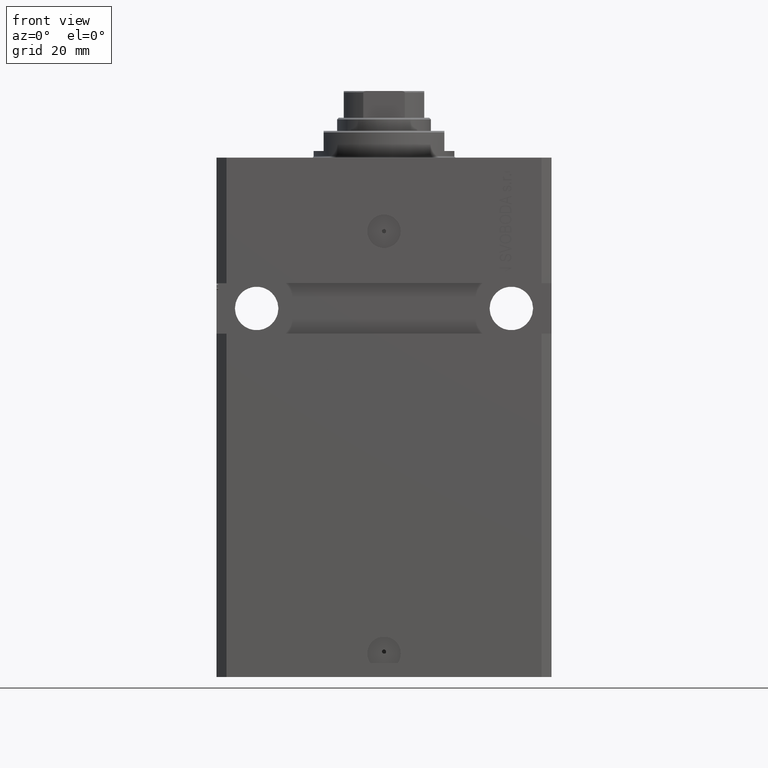
[diagram: clean part render]
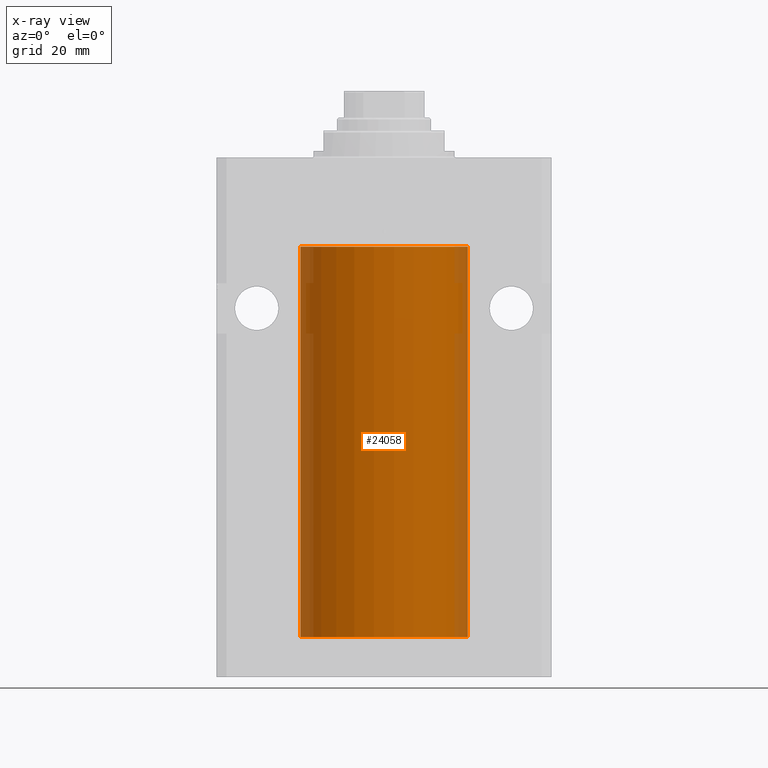
[diagram: x-ray — body ghosted, one internal face saturated and labeled with its STEP entity id]
A machine part, front view, then the same camera in x-ray: the body is ghosted and one INTERNAL B-rep face — a face not visible from any outside direction — is saturated and labeled: STEP entity #24058.
In plain terms, the highlighted cylindrical surface (partial cylindrical patch) has radius 25 mm, axis along (0, 0, 1).
Its self-contained STEP definition (entity closure, byte-faithful):
#1090 = CARTESIAN_POINT ( 'NONE',  ( 0.000000000000000000, 0.000000000000000000, -26.60000000000000142 ) ) ;
#2147 = CARTESIAN_POINT ( 'NONE',  ( 24.99405221541606892, -0.5573590499560034939, -140.8264563884999347 ) ) ;
#2243 = ORIENTED_EDGE ( 'NONE', *, *, #16181, .T. ) ;
#2378 = CARTESIAN_POINT ( 'NONE',  ( -24.99813644420121506, -0.3263088753891940641, -141.0574119792819374 ) ) ;
#2499 = ORIENTED_EDGE ( 'NONE', *, *, #21433, .T. ) ;
#2803 = CARTESIAN_POINT ( 'NONE',  ( -25.00000000000000000, 3.061616997868383043E-15, -143.0999999999999943 ) ) ;
#3096 = CARTESIAN_POINT ( 'NONE',  ( -25.00000000000008171, 3.517566533863564531E-13, -141.1250000000032685 ) ) ;
#3590 = EDGE_CURVE ( 'NONE', #18065, #9797, #22498, .T. ) ;
#3774 = CARTESIAN_POINT ( 'NONE',  ( 24.99218627891525912, -0.6250000000000449640, -140.4999999999999716 ) ) ;
#4320 = VERTEX_POINT ( 'NONE', #16765 ) ;
#5155 = VERTEX_POINT ( 'NONE', #9825 ) ;
#5728 = DIRECTION ( 'NONE',  ( 0.000000000000000000, 0.000000000000000000, 1.000000000000000000 ) ) ;
#6041 = CARTESIAN_POINT ( 'NONE',  ( 25.00000000000000000, -0.1650629246255861937, -141.1249999999999716 ) ) ;
#8714 = CARTESIAN_POINT ( 'NONE',  ( 24.99218627891525912, -0.6250000000000449640, -140.4999999999999716 ) ) ;
#8967 = VECTOR ( 'NONE', #13938, 1000.000000000000000 ) ;
#9797 = VERTEX_POINT ( 'NONE', #23035 ) ;
#9825 = CARTESIAN_POINT ( 'NONE',  ( -25.00000000000000000, 3.061616997868383043E-15, -26.60000000000000142 ) ) ;
#10835 = DIRECTION ( 'NONE',  ( -0.000000000000000000, -0.000000000000000000, 1.000000000000000000 ) ) ;
#11603 = EDGE_CURVE ( 'NONE', #15864, #9797, #22957, .T. ) ;
#12080 = DIRECTION ( 'NONE',  ( -0.000000000000000000, -0.000000000000000000, 1.000000000000000000 ) ) ;
#12880 = CARTESIAN_POINT ( 'NONE',  ( 24.99218627891526268, -0.6250000000000450751, -140.6647828774370623 ) ) ;
#13158 = CARTESIAN_POINT ( 'NONE',  ( -25.00000000000000000, -2.240465332326360227E-14, -139.8749999999999716 ) ) ;
#13228 = EDGE_CURVE ( 'NONE', #5155, #46076, #14794, .T. ) ;
#13295 = EDGE_CURVE ( 'NONE', #25918, #15864, #38964, .T. ) ;
#13351 = CARTESIAN_POINT ( 'NONE',  ( -25.00000000000000711, -0.1651503688830903982, -139.8750000000000284 ) ) ;
#13381 = B_SPLINE_CURVE_WITH_KNOTS ( 'NONE', 3,
 ( #45789, #30423, #27760, #27273, #35064, #38976 ),
 .UNSPECIFIED., .F., .F.,
 ( 4, 2, 4 ),
 ( 0.001954111766881311187, 0.002442787801636890632, 0.002931463836392470077 ),
 .UNSPECIFIED. ) ;
#13827 = CARTESIAN_POINT ( 'NONE',  ( -24.99406145684571356, -0.5569515746259056099, -140.8270940848234432 ) ) ;
#13938 = DIRECTION ( 'NONE',  ( -0.000000000000000000, -0.000000000000000000, 1.000000000000000000 ) ) ;
#14794 = CIRCLE ( 'NONE', #30368, 25.00000000000000000 ) ;
#15864 = VERTEX_POINT ( 'NONE', #21888 ) ;
#16181 = EDGE_CURVE ( 'NONE', #25918, #4320, #21829, .T. ) ;
#16451 = DIRECTION ( 'NONE',  ( 1.000000000000000000, 0.000000000000000000, 0.000000000000000000 ) ) ;
#16765 = CARTESIAN_POINT ( 'NONE',  ( -25.00000000000008171, 3.517566533863564531E-13, -141.1250000000032685 ) ) ;
#17100 = CARTESIAN_POINT ( 'NONE',  ( 25.00000000000000000, 0.000000000000000000, -143.0999999999999943 ) ) ;
#17265 = AXIS2_PLACEMENT_3D ( 'NONE', #20114, #12080, #16451 ) ;
#18065 = VERTEX_POINT ( 'NONE', #3774 ) ;
#18677 = VERTEX_POINT ( 'NONE', #24629 ) ;
#19859 = DIRECTION ( 'NONE',  ( 0.000000000000000000, 0.000000000000000000, 1.000000000000000000 ) ) ;
#20114 = CARTESIAN_POINT ( 'NONE',  ( 0.000000000000000000, 0.000000000000000000, -143.0999999999999943 ) ) ;
#20661 = CARTESIAN_POINT ( 'NONE',  ( -24.99218282981962957, -0.6251379207535932014, -140.3356756471091558 ) ) ;
#21247 = ORIENTED_EDGE ( 'NONE', *, *, #36749, .T. ) ;
#21433 = EDGE_CURVE ( 'NONE', #18677, #18065, #13381, .T. ) ;
#21632 = CARTESIAN_POINT ( 'NONE',  ( -25.00000000000000355, -0.1631302912503588276, -141.1250000000002274 ) ) ;
#21829 = LINE ( 'NONE', #36677, #26349 ) ;
#21888 = CARTESIAN_POINT ( 'NONE',  ( 25.00000000000000000, 0.000000000000000000, -143.0999999999999943 ) ) ;
#22498 = B_SPLINE_CURVE_WITH_KNOTS ( 'NONE', 3,
 ( #8714, #12880, #2147, #31120, #6041, #45992 ),
 .UNSPECIFIED., .F., .F.,
 ( 4, 2, 4 ),
 ( 0.002931463836392470077, 0.003419622654026911821, 0.003907781471661353132 ),
 .UNSPECIFIED. ) ;
#22707 = DIRECTION ( 'NONE',  ( -0.000000000000000000, -0.000000000000000000, 1.000000000000000000 ) ) ;
#22957 = LINE ( 'NONE', #38057, #38892 ) ;
#23035 = CARTESIAN_POINT ( 'NONE',  ( 25.00000000000000000, 2.614778811499482268E-15, -141.1249999999999716 ) ) ;
#23741 = EDGE_CURVE ( 'NONE', #4320, #34115, #42403, .T. ) ;
#24058 = ADVANCED_FACE ( 'NONE', ( #34709 ), #38624, .F. ) ;
#24629 = CARTESIAN_POINT ( 'NONE',  ( 25.00000000000008171, 3.486950366684838397E-13, -139.8749999999966747 ) ) ;
#25741 = ORIENTED_EDGE ( 'NONE', *, *, #13295, .F. ) ;
#25918 = VERTEX_POINT ( 'NONE', #42489 ) ;
#26133 = VECTOR ( 'NONE', #10835, 1000.000000000000000 ) ;
#26349 = VECTOR ( 'NONE', #33238, 1000.000000000000000 ) ;
#27273 = CARTESIAN_POINT ( 'NONE',  ( 24.99405709967502887, -0.5571503051635620096, -140.1731998930931695 ) ) ;
#27760 = CARTESIAN_POINT ( 'NONE',  ( 24.99813432839964733, -0.3264764365875501562, -139.9426599702414933 ) ) ;
#29154 = CARTESIAN_POINT ( 'NONE',  ( -24.99404783808661534, -0.5575587241817613338, -140.1738392125429868 ) ) ;
#30368 = AXIS2_PLACEMENT_3D ( 'NONE', #1090, #19859, #45924 ) ;
#30423 = CARTESIAN_POINT ( 'NONE',  ( 25.00000000000000000, -0.1632166659117592067, -139.8749999999998010 ) ) ;
#31120 = CARTESIAN_POINT ( 'NONE',  ( 24.99813006673835503, -0.3267849812101316642, -141.0571664564703553 ) ) ;
#32651 = ORIENTED_EDGE ( 'NONE', *, *, #34828, .F. ) ;
#33238 = DIRECTION ( 'NONE',  ( -0.000000000000000000, -0.000000000000000000, 1.000000000000000000 ) ) ;
#33861 = LINE ( 'NONE', #2803, #26133 ) ;
#34115 = VERTEX_POINT ( 'NONE', #13158 ) ;
#34648 = ORIENTED_EDGE ( 'NONE', *, *, #11603, .F. ) ;
#34709 = FACE_OUTER_BOUND ( 'NONE', #35174, .T. ) ;
#34828 = EDGE_CURVE ( 'NONE', #18677, #46076, #42927, .T. ) ;
#35064 = CARTESIAN_POINT ( 'NONE',  ( 24.99218627891525912, -0.6250000000000449640, -140.3350425307653211 ) ) ;
#35174 = EDGE_LOOP ( 'NONE', ( #25741, #2243, #36778, #21247, #42245, #32651, #2499, #45097, #34648 ) ) ;
#36170 = CARTESIAN_POINT ( 'NONE',  ( 0.000000000000000000, 0.000000000000000000, -143.0999999999999943 ) ) ;
#36677 = CARTESIAN_POINT ( 'NONE',  ( -25.00000000000000000, 3.061616997868383043E-15, -143.0999999999999943 ) ) ;
#36749 = EDGE_CURVE ( 'NONE', #34115, #5155, #33861, .T. ) ;
#36778 = ORIENTED_EDGE ( 'NONE', *, *, #23741, .T. ) ;
#38057 = CARTESIAN_POINT ( 'NONE',  ( 25.00000000000000000, 0.000000000000000000, -143.0999999999999943 ) ) ;
#38175 = AXIS2_PLACEMENT_3D ( 'NONE', #36170, #5728, #39588 ) ;
#38624 = CYLINDRICAL_SURFACE ( 'NONE', #17265, 25.00000000000000000 ) ;
#38892 = VECTOR ( 'NONE', #22707, 1000.000000000000000 ) ;
#38964 = CIRCLE ( 'NONE', #38175, 25.00000000000000000 ) ;
#38976 = CARTESIAN_POINT ( 'NONE',  ( 24.99218627891525912, -0.6250000000000449640, -140.4999999999999716 ) ) ;
#39588 = DIRECTION ( 'NONE',  ( 1.000000000000000000, 0.000000000000000000, 0.000000000000000000 ) ) ;
#40015 = CARTESIAN_POINT ( 'NONE',  ( 25.00000000000000000, 0.000000000000000000, -26.60000000000000142 ) ) ;
#42245 = ORIENTED_EDGE ( 'NONE', *, *, #13228, .T. ) ;
#42403 = B_SPLINE_CURVE_WITH_KNOTS ( 'NONE', 3,
 ( #3096, #21632, #2378, #13827, #44019, #20661, #29154, #46715, #13351, #43061 ),
 .UNSPECIFIED., .F., .F.,
 ( 4, 2, 2, 2, 4 ),
 ( 0.001954111766881379275, 0.002442529193076384015, 0.002930946619271388755, 0.003419364045466393495, 0.003907781471661398234 ),
 .UNSPECIFIED. ) ;
#42489 = CARTESIAN_POINT ( 'NONE',  ( -25.00000000000000000, 3.061616997868383043E-15, -143.0999999999999943 ) ) ;
#42927 = LINE ( 'NONE', #17100, #8967 ) ;
#43061 = CARTESIAN_POINT ( 'NONE',  ( -25.00000000000000000, -2.240465332326360227E-14, -139.8749999999999716 ) ) ;
#44019 = CARTESIAN_POINT ( 'NONE',  ( -24.99218973898648599, -0.6248616403601254810, -140.6653718335254553 ) ) ;
#45097 = ORIENTED_EDGE ( 'NONE', *, *, #3590, .T. ) ;
#45789 = CARTESIAN_POINT ( 'NONE',  ( 25.00000000000008171, 3.486950366684838397E-13, -139.8749999999966747 ) ) ;
#45924 = DIRECTION ( 'NONE',  ( 1.000000000000000000, 0.000000000000000000, 0.000000000000000000 ) ) ;
#45992 = CARTESIAN_POINT ( 'NONE',  ( 25.00000000000000000, 2.614778811499482268E-15, -141.1249999999999716 ) ) ;
#46076 = VERTEX_POINT ( 'NONE', #40015 ) ;
#46715 = CARTESIAN_POINT ( 'NONE',  ( -24.99812796309118923, -0.3269516851027416959, -139.9429046887701418 ) ) ;